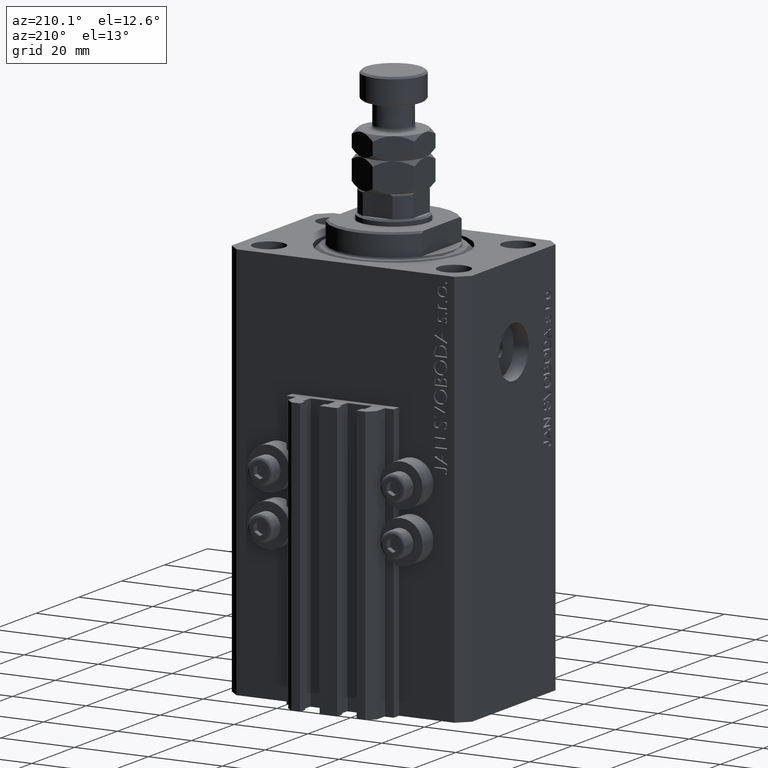
[diagram: clean part render]
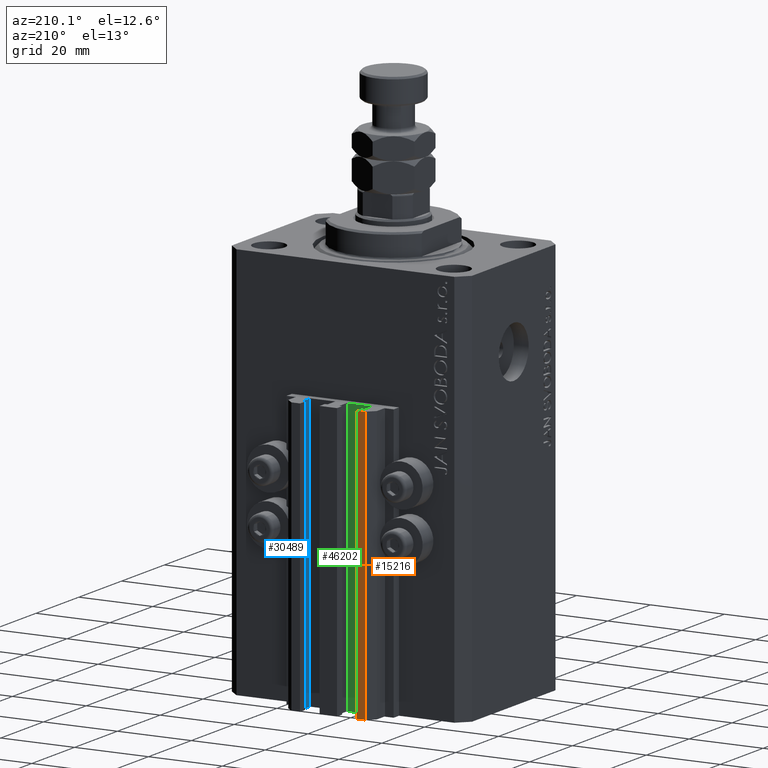
[diagram: same view with three faces highlighted in distinct colors, each labeled with its STEP entity id]
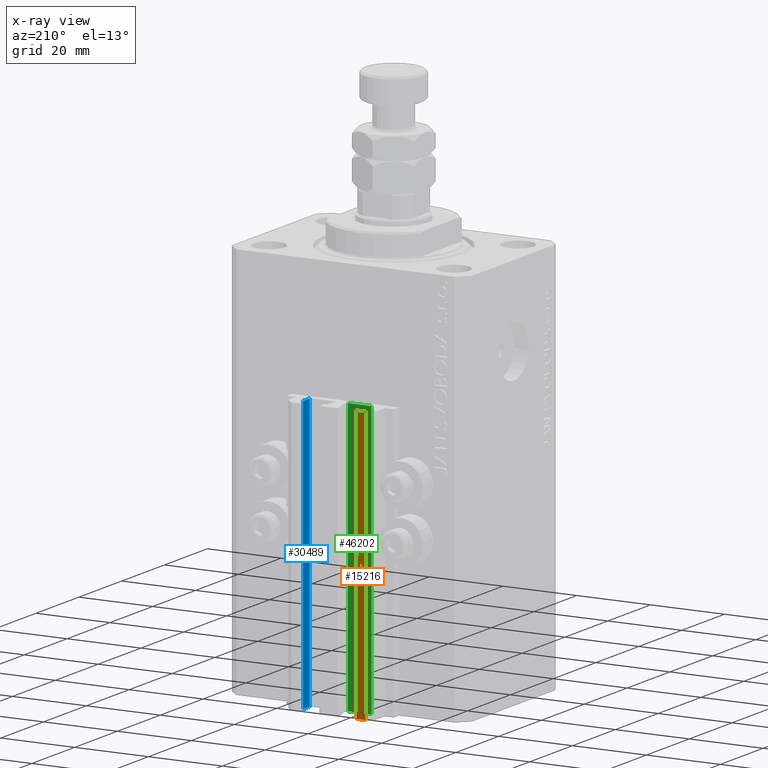
[diagram: x-ray of the same camera — body ghosted, the three highlighted faces saturated]
A machine part, auxiliary view with three faces highlighted in distinct colors.
The next image is the same camera in x-ray (body ghosted, the three faces saturated) — at least one of them is partly hidden behind the body in this view.
Their STEP definitions:

[orange] entity #15216 — the highlighted planar face has unit normal (0, 1, 0).
#967 = LINE ( 'NONE', #31184, #1369 ) ;
#1369 = VECTOR ( 'NONE', #38850, 1000.000000000000000 ) ;
#3570 = LINE ( 'NONE', #34258, #45191 ) ;
#5707 = FACE_OUTER_BOUND ( 'NONE', #7366, .T. ) ;
#5999 = VERTEX_POINT ( 'NONE', #10330 ) ;
#6920 = VERTEX_POINT ( 'NONE', #37854 ) ;
#7366 = EDGE_LOOP ( 'NONE', ( #26631, #33001, #42695, #25329 ) ) ;
#7878 = LINE ( 'NONE', #37830, #36936 ) ;
#8119 = DIRECTION ( 'NONE',  ( -1.000000000000000000, 1.476360405086644852E-15, 0.000000000000000000 ) ) ;
#8780 = CARTESIAN_POINT ( 'NONE',  ( -7.650000000000000355, 30.49999999999948486, -33.00000000000000000 ) ) ;
#10330 = CARTESIAN_POINT ( 'NONE',  ( -7.650000000000000355, 30.49999999999948486, -107.0000000000000000 ) ) ;
#10836 = LINE ( 'NONE', #48712, #12578 ) ;
#11696 = EDGE_CURVE ( 'NONE', #34591, #6920, #10836, .T. ) ;
#12578 = VECTOR ( 'NONE', #14064, 1000.000000000000000 ) ;
#14064 = DIRECTION ( 'NONE',  ( 0.000000000000000000, 0.000000000000000000, 1.000000000000000000 ) ) ;
#15216 = ADVANCED_FACE ( 'NONE', ( #5707 ), #35174, .T. ) ;
#20580 = DIRECTION ( 'NONE',  ( 1.476360405086644852E-15, 1.000000000000000000, -0.000000000000000000 ) ) ;
#20831 = CARTESIAN_POINT ( 'NONE',  ( -7.650000000000000355, 30.49999999999948486, -107.0000000000000000 ) ) ;
#24905 = VERTEX_POINT ( 'NONE', #8780 ) ;
#25329 = ORIENTED_EDGE ( 'NONE', *, *, #11696, .T. ) ;
#25876 = CARTESIAN_POINT ( 'NONE',  ( -10.00000000000000000, 30.49999999999948841, -107.0000000000000000 ) ) ;
#26041 = EDGE_CURVE ( 'NONE', #5999, #24905, #3570, .T. ) ;
#26631 = ORIENTED_EDGE ( 'NONE', *, *, #31328, .F. ) ;
#30968 = AXIS2_PLACEMENT_3D ( 'NONE', #20831, #20580, #38897 ) ;
#31184 = CARTESIAN_POINT ( 'NONE',  ( -7.650000000000000355, 30.49999999999948486, -33.00000000000000000 ) ) ;
#31328 = EDGE_CURVE ( 'NONE', #24905, #6920, #967, .T. ) ;
#31658 = EDGE_CURVE ( 'NONE', #5999, #34591, #7878, .T. ) ;
#33001 = ORIENTED_EDGE ( 'NONE', *, *, #26041, .F. ) ;
#34258 = CARTESIAN_POINT ( 'NONE',  ( -7.650000000000000355, 30.49999999999948486, -107.0000000000000000 ) ) ;
#34591 = VERTEX_POINT ( 'NONE', #25876 ) ;
#35174 = PLANE ( 'NONE',  #30968 ) ;
#36936 = VECTOR ( 'NONE', #8119, 1000.000000000000000 ) ;
#37727 = DIRECTION ( 'NONE',  ( 0.000000000000000000, 0.000000000000000000, 1.000000000000000000 ) ) ;
#37830 = CARTESIAN_POINT ( 'NONE',  ( -7.650000000000000355, 30.49999999999948486, -107.0000000000000000 ) ) ;
#37854 = CARTESIAN_POINT ( 'NONE',  ( -10.00000000000000000, 30.49999999999948841, -33.00000000000000000 ) ) ;
#38850 = DIRECTION ( 'NONE',  ( -1.000000000000000000, 1.476360405086644852E-15, 0.000000000000000000 ) ) ;
#38897 = DIRECTION ( 'NONE',  ( -1.000000000000000000, 1.476360405086644852E-15, 0.000000000000000000 ) ) ;
#42695 = ORIENTED_EDGE ( 'NONE', *, *, #31658, .T. ) ;
#45191 = VECTOR ( 'NONE', #37727, 1000.000000000000000 ) ;
#48712 = CARTESIAN_POINT ( 'NONE',  ( -10.00000000000000000, 30.49999999999948841, -107.0000000000000000 ) ) ;

[blue] entity #30489 — the highlighted planar face has unit normal (-1, 0, 0).
#1290 = DIRECTION ( 'NONE',  ( 0.000000000000000000, 0.000000000000000000, 1.000000000000000000 ) ) ;
#2266 = CARTESIAN_POINT ( 'NONE',  ( 8.400000000000000355, 27.89999999999950475, -107.0000000000000000 ) ) ;
#2938 = VECTOR ( 'NONE', #48244, 1000.000000000000000 ) ;
#4258 = VERTEX_POINT ( 'NONE', #13116 ) ;
#7506 = CARTESIAN_POINT ( 'NONE',  ( 8.400000000000000355, 27.89999999999950475, -33.00000000000000000 ) ) ;
#10228 = VECTOR ( 'NONE', #46637, 1000.000000000000000 ) ;
#11400 = DIRECTION ( 'NONE',  ( -5.421010862427496532E-16, -1.000000000000000000, 0.000000000000000000 ) ) ;
#11412 = VERTEX_POINT ( 'NONE', #16551 ) ;
#13116 = CARTESIAN_POINT ( 'NONE',  ( 8.400000000000000355, 27.89999999999950475, -107.0000000000000000 ) ) ;
#13147 = VERTEX_POINT ( 'NONE', #7506 ) ;
#15297 = VECTOR ( 'NONE', #1290, 1000.000000000000000 ) ;
#16551 = CARTESIAN_POINT ( 'NONE',  ( 8.400000000000000355, 24.69999999999949125, -107.0000000000000000 ) ) ;
#18068 = ORIENTED_EDGE ( 'NONE', *, *, #36384, .F. ) ;
#18927 = EDGE_LOOP ( 'NONE', ( #18068, #30878, #48987, #44906 ) ) ;
#19611 = EDGE_CURVE ( 'NONE', #4258, #13147, #24811, .T. ) ;
#21518 = CARTESIAN_POINT ( 'NONE',  ( 8.400000000000000355, 24.69999999999949125, -107.0000000000000000 ) ) ;
#22552 = FACE_OUTER_BOUND ( 'NONE', #18927, .T. ) ;
#24811 = LINE ( 'NONE', #2266, #15297 ) ;
#24857 = AXIS2_PLACEMENT_3D ( 'NONE', #30695, #26258, #11400 ) ;
#24885 = DIRECTION ( 'NONE',  ( -5.421010862427496532E-16, -1.000000000000000000, 0.000000000000000000 ) ) ;
#26258 = DIRECTION ( 'NONE',  ( -1.000000000000000000, 5.421010862427496532E-16, 0.000000000000000000 ) ) ;
#27834 = CARTESIAN_POINT ( 'NONE',  ( 8.400000000000000355, 27.89999999999950475, -33.00000000000000000 ) ) ;
#28992 = CARTESIAN_POINT ( 'NONE',  ( 8.400000000000000355, 24.69999999999949125, -33.00000000000000000 ) ) ;
#30489 = ADVANCED_FACE ( 'NONE', ( #22552 ), #45305, .T. ) ;
#30695 = CARTESIAN_POINT ( 'NONE',  ( 8.400000000000000355, 27.89999999999950475, -107.0000000000000000 ) ) ;
#30878 = ORIENTED_EDGE ( 'NONE', *, *, #19611, .F. ) ;
#31533 = EDGE_CURVE ( 'NONE', #11412, #36753, #41056, .T. ) ;
#32302 = CARTESIAN_POINT ( 'NONE',  ( 8.400000000000000355, 27.89999999999950475, -107.0000000000000000 ) ) ;
#36384 = EDGE_CURVE ( 'NONE', #13147, #36753, #36467, .T. ) ;
#36467 = LINE ( 'NONE', #27834, #10228 ) ;
#36753 = VERTEX_POINT ( 'NONE', #28992 ) ;
#39689 = VECTOR ( 'NONE', #24885, 1000.000000000000000 ) ;
#40472 = LINE ( 'NONE', #32302, #39689 ) ;
#41056 = LINE ( 'NONE', #21518, #2938 ) ;
#44906 = ORIENTED_EDGE ( 'NONE', *, *, #31533, .T. ) ;
#45305 = PLANE ( 'NONE',  #24857 ) ;
#46637 = DIRECTION ( 'NONE',  ( -5.421010862427496532E-16, -1.000000000000000000, 0.000000000000000000 ) ) ;
#46801 = EDGE_CURVE ( 'NONE', #4258, #11412, #40472, .T. ) ;
#48244 = DIRECTION ( 'NONE',  ( 0.000000000000000000, 0.000000000000000000, 1.000000000000000000 ) ) ;
#48987 = ORIENTED_EDGE ( 'NONE', *, *, #46801, .T. ) ;

[green] entity #46202 — the highlighted planar face has unit normal (0, 1, 0).
#455 = DIRECTION ( 'NONE',  ( 0.000000000000000000, 0.000000000000000000, 1.000000000000000000 ) ) ;
#2090 = LINE ( 'NONE', #43194, #26063 ) ;
#5922 = ORIENTED_EDGE ( 'NONE', *, *, #15173, .T. ) ;
#7214 = ORIENTED_EDGE ( 'NONE', *, *, #12337, .T. ) ;
#9433 = CARTESIAN_POINT ( 'NONE',  ( -1.800000000000000933, 24.49999999999949551, -107.0000000000000000 ) ) ;
#11371 = FACE_OUTER_BOUND ( 'NONE', #20377, .T. ) ;
#11451 = LINE ( 'NONE', #27279, #33173 ) ;
#11609 = CARTESIAN_POINT ( 'NONE',  ( -1.800000000000000933, 24.49999999999949551, -107.0000000000000000 ) ) ;
#12337 = EDGE_CURVE ( 'NONE', #44851, #14613, #11451, .T. ) ;
#14613 = VERTEX_POINT ( 'NONE', #37261 ) ;
#15173 = EDGE_CURVE ( 'NONE', #17127, #44851, #38414, .T. ) ;
#17127 = VERTEX_POINT ( 'NONE', #31731 ) ;
#17518 = VECTOR ( 'NONE', #24528, 1000.000000000000000 ) ;
#18398 = CARTESIAN_POINT ( 'NONE',  ( -1.800000000000000933, 24.49999999999949551, -33.00000000000000000 ) ) ;
#19175 = VECTOR ( 'NONE', #48314, 1000.000000000000000 ) ;
#20377 = EDGE_LOOP ( 'NONE', ( #43983, #21235, #5922, #7214 ) ) ;
#21235 = ORIENTED_EDGE ( 'NONE', *, *, #40363, .F. ) ;
#22329 = CARTESIAN_POINT ( 'NONE',  ( -8.199999999999999289, 24.49999999999949551, -107.0000000000000000 ) ) ;
#24528 = DIRECTION ( 'NONE',  ( -1.000000000000000000, 0.000000000000000000, 0.000000000000000000 ) ) ;
#26063 = VECTOR ( 'NONE', #32307, 1000.000000000000000 ) ;
#26952 = PLANE ( 'NONE',  #28602 ) ;
#27279 = CARTESIAN_POINT ( 'NONE',  ( -8.199999999999999289, 24.49999999999949551, -107.0000000000000000 ) ) ;
#28602 = AXIS2_PLACEMENT_3D ( 'NONE', #11609, #49002, #455 ) ;
#28684 = EDGE_CURVE ( 'NONE', #39964, #14613, #40874, .T. ) ;
#31731 = CARTESIAN_POINT ( 'NONE',  ( -1.800000000000000933, 24.49999999999949551, -107.0000000000000000 ) ) ;
#32307 = DIRECTION ( 'NONE',  ( 0.000000000000000000, 0.000000000000000000, 1.000000000000000000 ) ) ;
#33173 = VECTOR ( 'NONE', #42359, 1000.000000000000000 ) ;
#37261 = CARTESIAN_POINT ( 'NONE',  ( -8.199999999999999289, 24.49999999999949551, -33.00000000000000000 ) ) ;
#38414 = LINE ( 'NONE', #9433, #17518 ) ;
#39964 = VERTEX_POINT ( 'NONE', #18398 ) ;
#40363 = EDGE_CURVE ( 'NONE', #17127, #39964, #2090, .T. ) ;
#40874 = LINE ( 'NONE', #43606, #19175 ) ;
#42359 = DIRECTION ( 'NONE',  ( 0.000000000000000000, 0.000000000000000000, 1.000000000000000000 ) ) ;
#43194 = CARTESIAN_POINT ( 'NONE',  ( -1.800000000000000933, 24.49999999999949551, -107.0000000000000000 ) ) ;
#43606 = CARTESIAN_POINT ( 'NONE',  ( -1.800000000000000933, 24.49999999999949551, -33.00000000000000000 ) ) ;
#43983 = ORIENTED_EDGE ( 'NONE', *, *, #28684, .F. ) ;
#44851 = VERTEX_POINT ( 'NONE', #22329 ) ;
#46202 = ADVANCED_FACE ( 'NONE', ( #11371 ), #26952, .T. ) ;
#48314 = DIRECTION ( 'NONE',  ( -1.000000000000000000, 0.000000000000000000, 0.000000000000000000 ) ) ;
#49002 = DIRECTION ( 'NONE',  ( 0.000000000000000000, 1.000000000000000000, -0.000000000000000000 ) ) ;